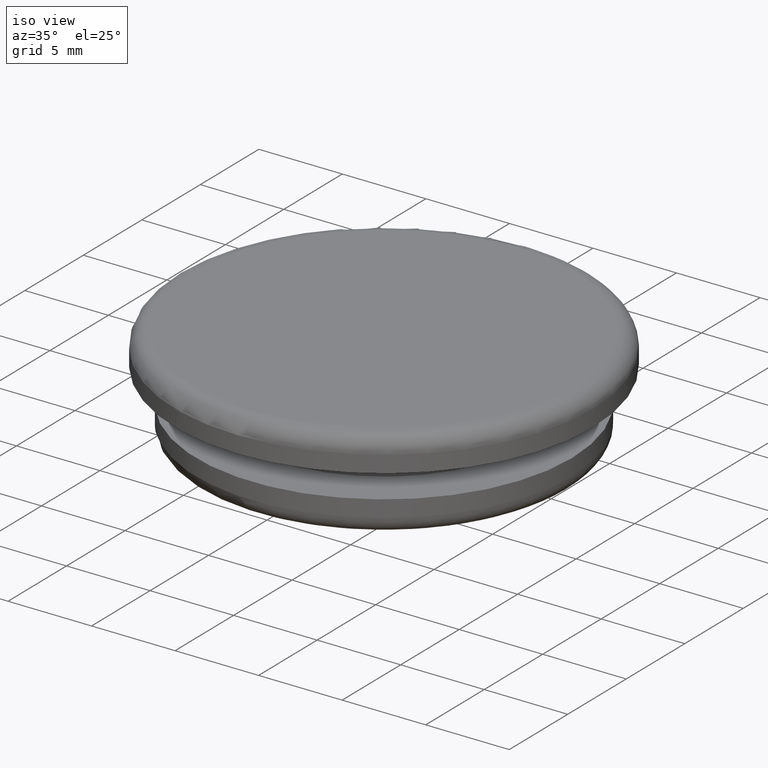
[diagram: clean part render]
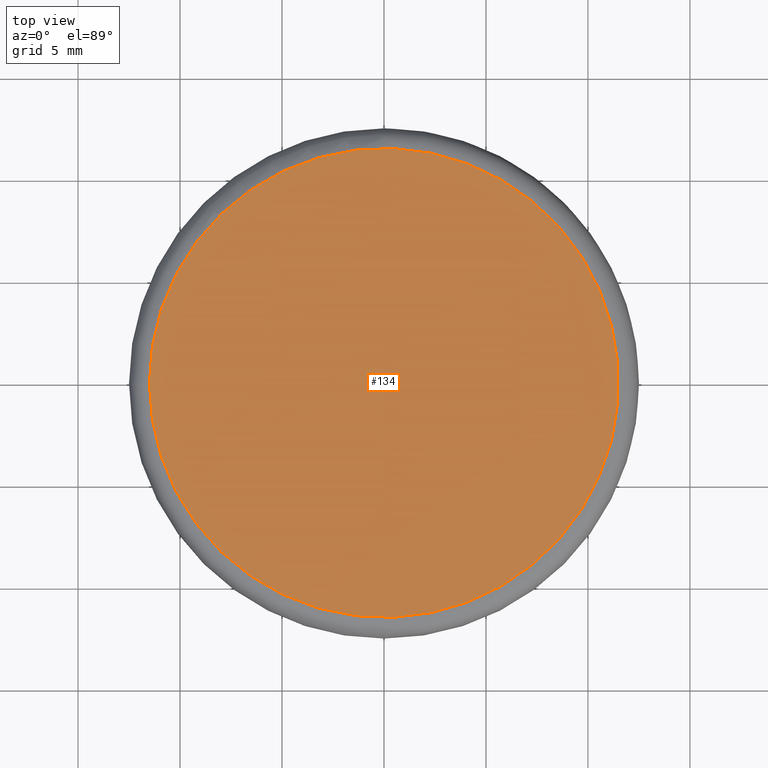
[diagram: tour spotlight — one face highlighted and labeled with its STEP entity id]
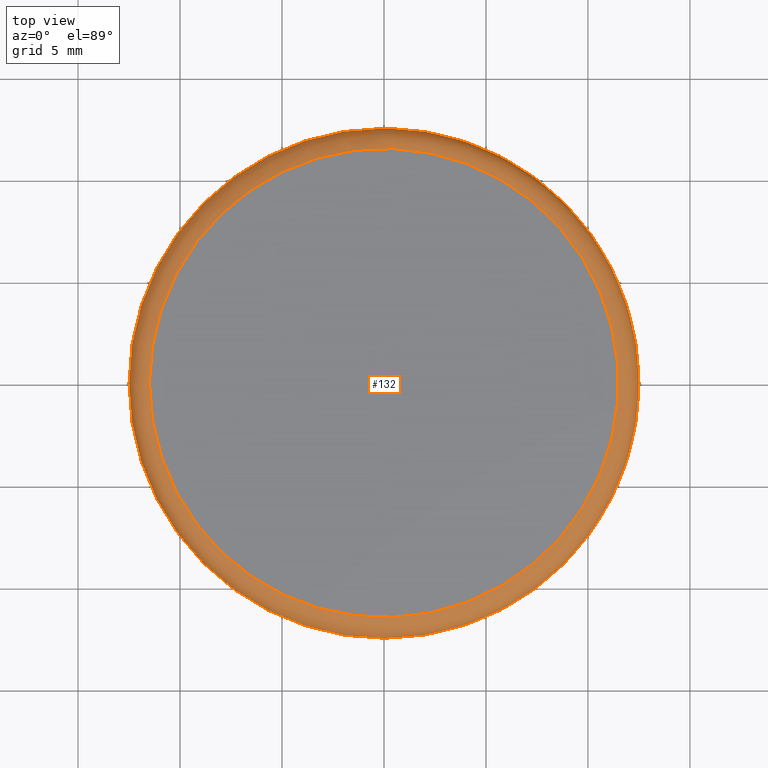
[diagram: tour spotlight — one face highlighted and labeled with its STEP entity id]
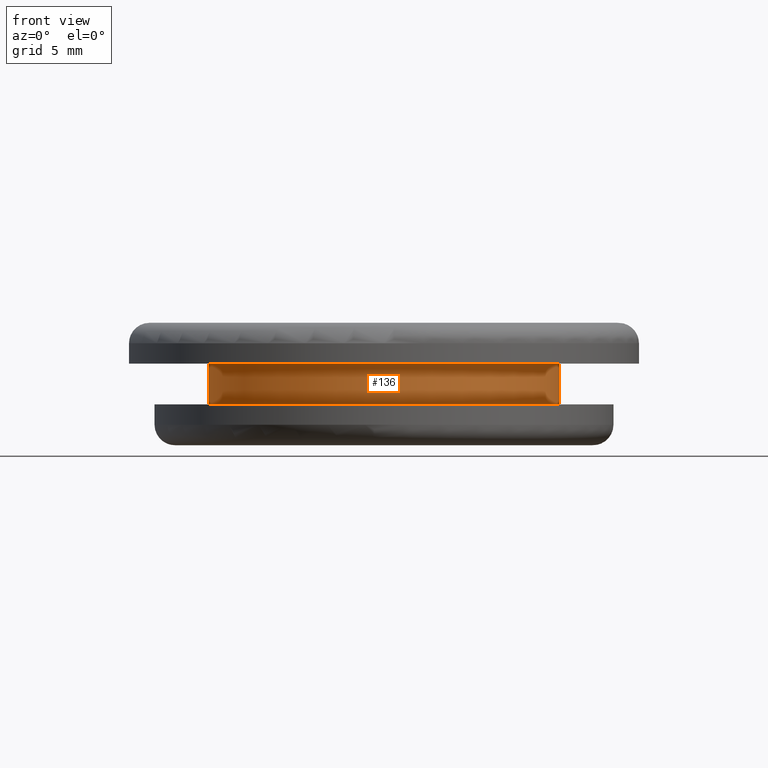
[diagram: tour spotlight — one face highlighted and labeled with its STEP entity id]
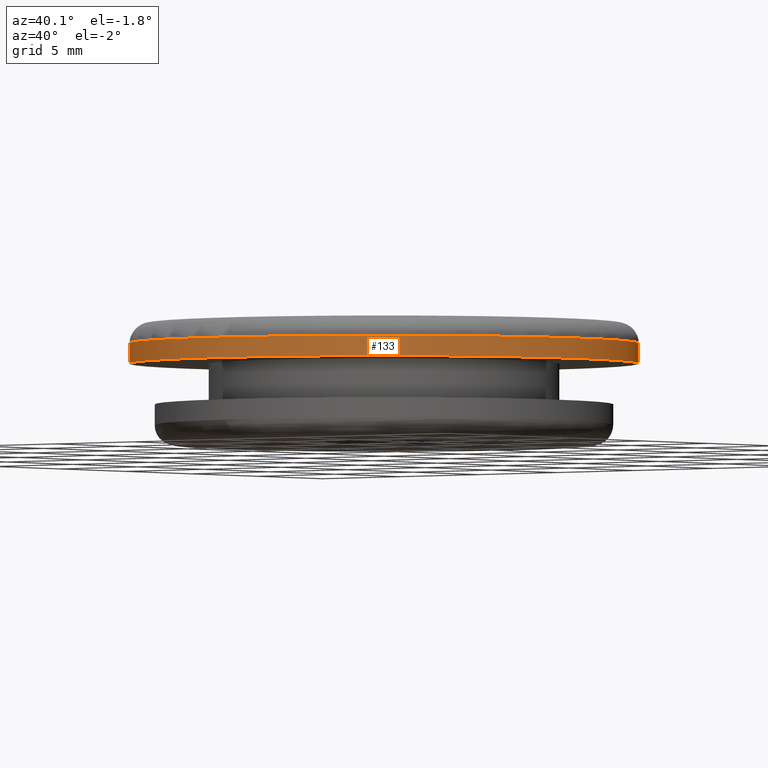
[diagram: tour spotlight — one face highlighted and labeled with its STEP entity id]
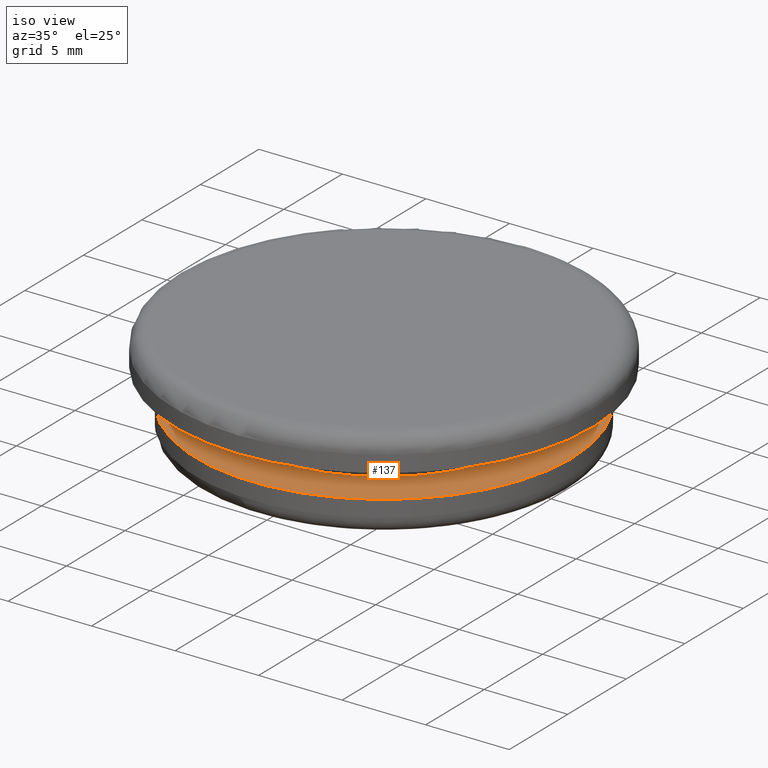
[diagram: tour spotlight — one face highlighted and labeled with its STEP entity id]
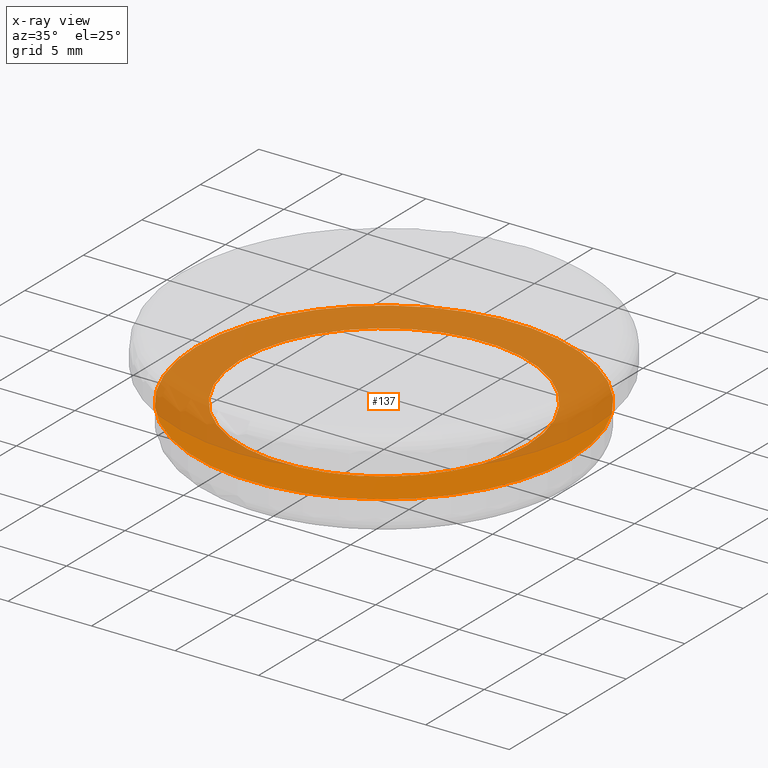
[diagram: x-ray of the same camera — body ghosted, this tour face saturated]
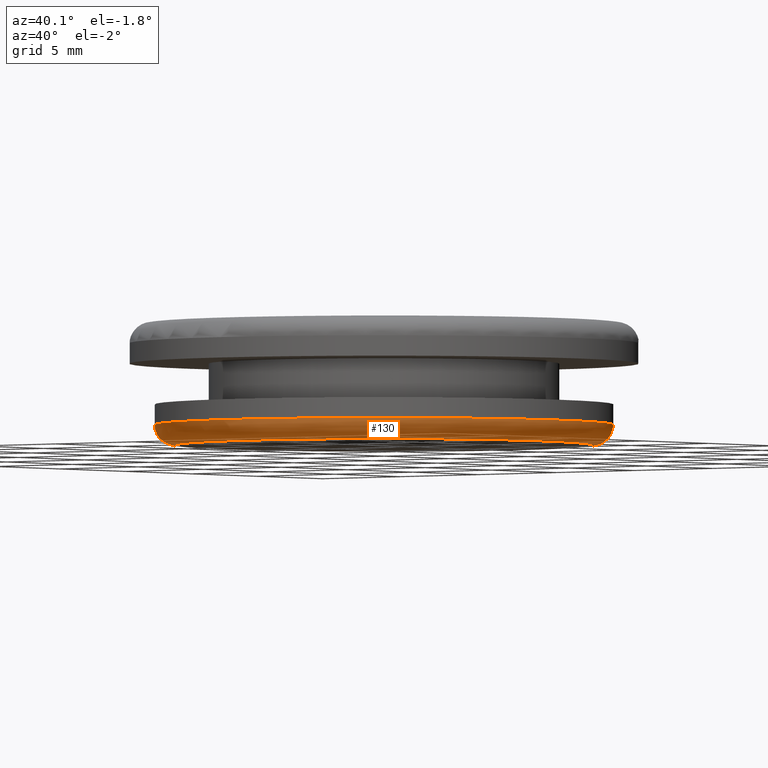
[diagram: tour spotlight — one face highlighted and labeled with its STEP entity id]
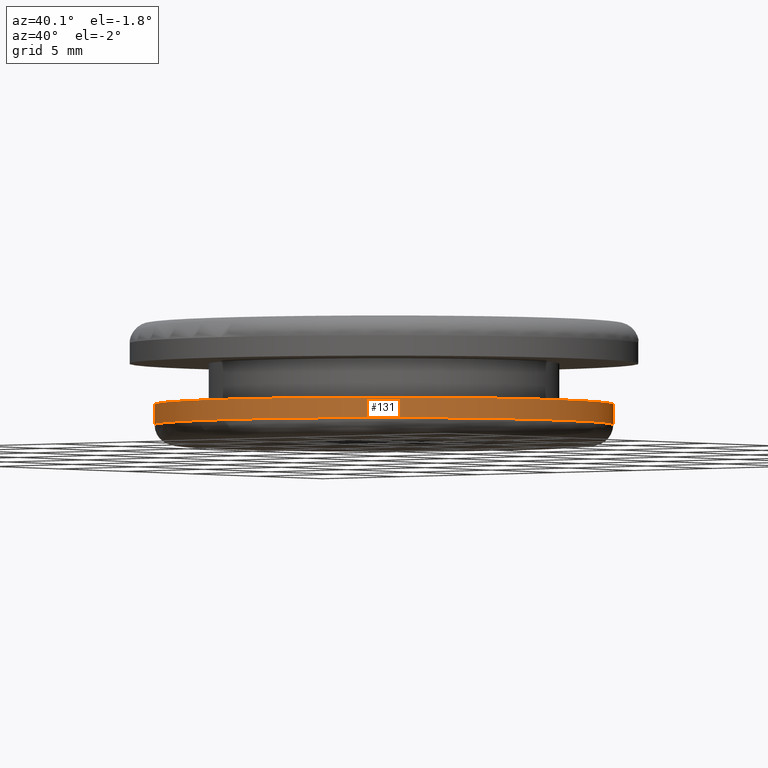
[diagram: tour spotlight — one face highlighted and labeled with its STEP entity id]
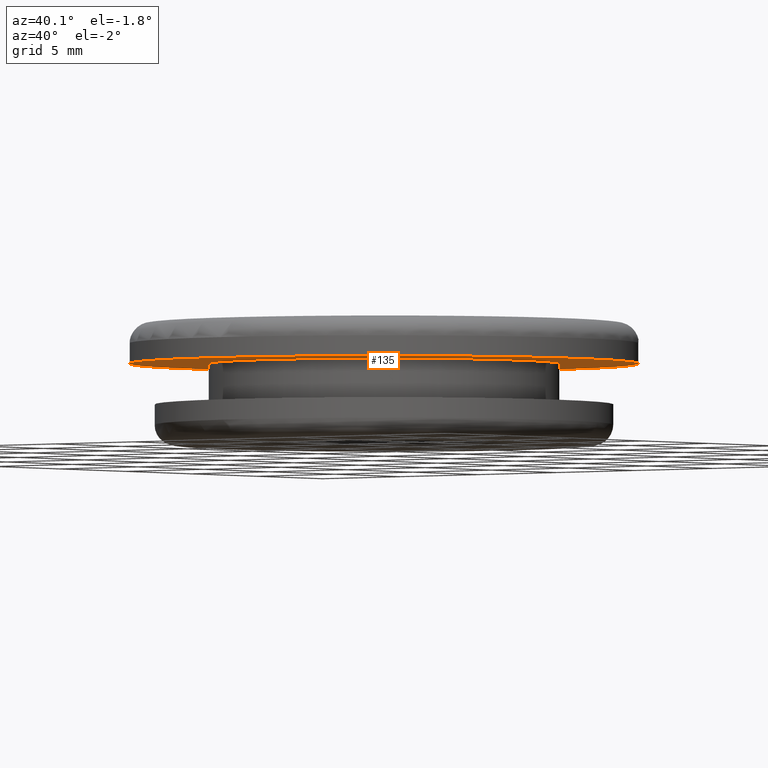
[diagram: tour spotlight — one face highlighted and labeled with its STEP entity id]
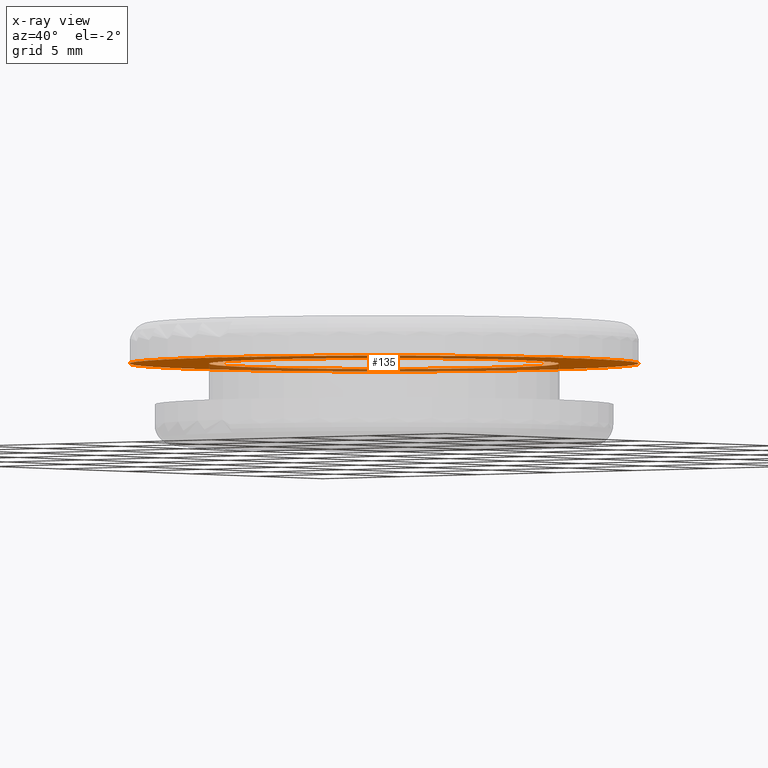
[diagram: x-ray of the same camera — body ghosted, this tour face saturated]
A machine part: a face-by-face anatomy tour. The part has 12 B-rep faces; the first image is the clean iso view, then the 8 largest visible faces are spotlighted one at a time (largest first), each with its STEP entity span.

Face 1 — top view, entity #134. In plain terms, the highlighted planar face has unit normal (0, 0, 1).
Definition (entity closure, byte-faithful):
#17=PLANE('',#157);
#42=FACE_OUTER_BOUND('',#61,.T.);
#61=EDGE_LOOP('',(#116));
#74=CIRCLE('',#153,11.5);
#85=VERTEX_POINT('',#231);
#96=EDGE_CURVE('',#85,#85,#74,.T.);
#116=ORIENTED_EDGE('',*,*,#96,.F.);
#134=ADVANCED_FACE('',(#42),#17,.T.);
#153=AXIS2_PLACEMENT_3D('',#232,#191,#192);
#157=AXIS2_PLACEMENT_3D('',#238,#199,#200);
#191=DIRECTION('center_axis',(-1.85037170770859E-16,0.,-1.));
#192=DIRECTION('ref_axis',(1.,0.,-1.85037170770859E-16));
#199=DIRECTION('center_axis',(1.85037170770859E-16,0.,1.));
#200=DIRECTION('ref_axis',(1.,0.,-1.85037170770859E-16));
#231=CARTESIAN_POINT('',(-11.5,1.40834381901946E-15,-2.31296463463575E-16));
#232=CARTESIAN_POINT('Origin',(-3.38963670212154E-31,0.,-2.35922392732846E-15));
#238=CARTESIAN_POINT('Origin',(-12.5,0.,0.));

Face 2 — top view, entity #132. In plain terms, the highlighted toroidal blend (fillet) surface has major radius 11.5 mm and minor (blend) radius 1 mm.
Definition (entity closure, byte-faithful):
#29=FACE_BOUND('',#58,.T.);
#40=FACE_OUTER_BOUND('',#57,.T.);
#57=EDGE_LOOP('',(#112));
#58=EDGE_LOOP('',(#113));
#74=CIRCLE('',#153,11.5);
#75=CIRCLE('',#154,12.5);
#85=VERTEX_POINT('',#231);
#86=VERTEX_POINT('',#233);
#96=EDGE_CURVE('',#85,#85,#74,.T.);
#97=EDGE_CURVE('',#86,#86,#75,.T.);
#112=ORIENTED_EDGE('',*,*,#96,.T.);
#113=ORIENTED_EDGE('',*,*,#97,.T.);
#125=TOROIDAL_SURFACE('',#152,11.5,1.);
#132=ADVANCED_FACE('',(#40,#29),#125,.T.);
#152=AXIS2_PLACEMENT_3D('',#230,#189,#190);
#153=AXIS2_PLACEMENT_3D('',#232,#191,#192);
#154=AXIS2_PLACEMENT_3D('',#234,#193,#194);
#189=DIRECTION('center_axis',(-1.85037170770859E-16,0.,-1.));
#190=DIRECTION('ref_axis',(-1.,0.,1.95399252334028E-16));
#191=DIRECTION('center_axis',(-1.85037170770859E-16,0.,-1.));
#192=DIRECTION('ref_axis',(1.,0.,-1.85037170770859E-16));
#193=DIRECTION('center_axis',(1.85037170770859E-16,0.,1.));
#194=DIRECTION('ref_axis',(1.,0.,-1.88737914186277E-16));
#230=CARTESIAN_POINT('Origin',(-1.8503717077086E-16,0.,-1.));
#231=CARTESIAN_POINT('',(-11.5,1.40834381901946E-15,-2.31296463463575E-16));
#232=CARTESIAN_POINT('Origin',(-3.38963670212154E-31,0.,-2.35922392732846E-15));
#233=CARTESIAN_POINT('',(-12.5,-1.53080849893419E-15,-1.));
#234=CARTESIAN_POINT('Origin',(-1.8503717077086E-16,0.,-1.));

Face 3 — front view, entity #136. In plain terms, the highlighted cylindrical surface (bore or boss wall) has radius 8.6 mm, axis along (-0, 0, -1).
Definition (entity closure, byte-faithful):
#23=CYLINDRICAL_SURFACE('',#160,8.6);
#32=FACE_BOUND('',#65,.T.);
#44=FACE_OUTER_BOUND('',#64,.T.);
#64=EDGE_LOOP('',(#119));
#65=EDGE_LOOP('',(#120));
#77=CIRCLE('',#159,8.6);
#78=CIRCLE('',#161,8.6);
#88=VERTEX_POINT('',#240);
#89=VERTEX_POINT('',#243);
#99=EDGE_CURVE('',#88,#88,#77,.T.);
#100=EDGE_CURVE('',#89,#89,#78,.T.);
#119=ORIENTED_EDGE('',*,*,#100,.F.);
#120=ORIENTED_EDGE('',*,*,#99,.T.);
#136=ADVANCED_FACE('',(#44,#32),#23,.T.);
#159=AXIS2_PLACEMENT_3D('',#241,#203,#204);
#160=AXIS2_PLACEMENT_3D('',#242,#205,#206);
#161=AXIS2_PLACEMENT_3D('',#244,#207,#208);
#203=DIRECTION('center_axis',(-1.85037170770859E-16,0.,-1.));
#204=DIRECTION('ref_axis',(1.,0.,-1.85037170770859E-16));
#205=DIRECTION('center_axis',(-1.85037170770859E-16,0.,-1.));
#206=DIRECTION('ref_axis',(-1.,0.,2.04487794139683E-16));
#207=DIRECTION('center_axis',(-1.85037170770859E-16,0.,-1.));
#208=DIRECTION('ref_axis',(1.,0.,-1.85037170770859E-16));
#240=CARTESIAN_POINT('',(-8.6,0.,-2.));
#241=CARTESIAN_POINT('Origin',(-3.70074341541719E-16,0.,-2.));
#242=CARTESIAN_POINT('Origin',(-5.55111512312578E-16,0.,-3.));
#243=CARTESIAN_POINT('',(-8.6,0.,-4.));
#244=CARTESIAN_POINT('Origin',(-7.40148683083438E-16,0.,-4.));

Face 4 — auxiliary view, entity #133. In plain terms, the highlighted cylindrical surface (bore or boss wall) has radius 12.5 mm, axis along (-0, 0, -1).
Definition (entity closure, byte-faithful):
#22=CYLINDRICAL_SURFACE('',#155,12.5);
#30=FACE_BOUND('',#60,.T.);
#41=FACE_OUTER_BOUND('',#59,.T.);
#59=EDGE_LOOP('',(#114));
#60=EDGE_LOOP('',(#115));
#75=CIRCLE('',#154,12.5);
#76=CIRCLE('',#156,12.5);
#86=VERTEX_POINT('',#233);
#87=VERTEX_POINT('',#236);
#97=EDGE_CURVE('',#86,#86,#75,.T.);
#98=EDGE_CURVE('',#87,#87,#76,.T.);
#114=ORIENTED_EDGE('',*,*,#98,.F.);
#115=ORIENTED_EDGE('',*,*,#97,.F.);
#133=ADVANCED_FACE('',(#41,#30),#22,.T.);
#154=AXIS2_PLACEMENT_3D('',#234,#193,#194);
#155=AXIS2_PLACEMENT_3D('',#235,#195,#196);
#156=AXIS2_PLACEMENT_3D('',#237,#197,#198);
#193=DIRECTION('center_axis',(1.85037170770859E-16,0.,1.));
#194=DIRECTION('ref_axis',(1.,0.,-1.88737914186277E-16));
#195=DIRECTION('center_axis',(-1.85037170770859E-16,0.,-1.));
#196=DIRECTION('ref_axis',(-1.,0.,2.04487794139683E-16));
#197=DIRECTION('center_axis',(-1.85037170770859E-16,0.,-1.));
#198=DIRECTION('ref_axis',(1.,0.,-1.85037170770859E-16));
#233=CARTESIAN_POINT('',(-12.5,-1.53080849893419E-15,-1.));
#234=CARTESIAN_POINT('Origin',(-1.8503717077086E-16,0.,-1.));
#235=CARTESIAN_POINT('Origin',(-1.8503717077086E-16,0.,-1.));
#236=CARTESIAN_POINT('',(-12.5,0.,-2.));
#237=CARTESIAN_POINT('Origin',(-3.70074341541719E-16,0.,-2.));

Face 5 — iso view, entity #137. An x-ray twin of the same camera follows (body ghosted, this face saturated) — the face is partly hidden behind the body. In plain terms, the highlighted planar face has unit normal (0, 0, 1).
Definition (entity closure, byte-faithful):
#19=PLANE('',#162);
#33=FACE_BOUND('',#67,.T.);
#45=FACE_OUTER_BOUND('',#66,.T.);
#66=EDGE_LOOP('',(#121));
#67=EDGE_LOOP('',(#122));
#73=CIRCLE('',#151,11.25);
#78=CIRCLE('',#161,8.6);
#84=VERTEX_POINT('',#228);
#89=VERTEX_POINT('',#243);
#95=EDGE_CURVE('',#84,#84,#73,.T.);
#100=EDGE_CURVE('',#89,#89,#78,.T.);
#121=ORIENTED_EDGE('',*,*,#95,.F.);
#122=ORIENTED_EDGE('',*,*,#100,.T.);
#137=ADVANCED_FACE('',(#45,#33),#19,.T.);
#151=AXIS2_PLACEMENT_3D('',#229,#187,#188);
#161=AXIS2_PLACEMENT_3D('',#244,#207,#208);
#162=AXIS2_PLACEMENT_3D('',#245,#209,#210);
#187=DIRECTION('center_axis',(-1.85037170770859E-16,0.,-1.));
#188=DIRECTION('ref_axis',(1.,0.,-1.85037170770859E-16));
#207=DIRECTION('center_axis',(-1.85037170770859E-16,0.,-1.));
#208=DIRECTION('ref_axis',(1.,0.,-1.85037170770859E-16));
#209=DIRECTION('center_axis',(1.85037170770859E-16,0.,1.));
#210=DIRECTION('ref_axis',(1.,0.,-2.22044604925031E-16));
#228=CARTESIAN_POINT('',(-11.25,0.,-4.));
#229=CARTESIAN_POINT('Origin',(-7.40148683083437E-16,0.,-4.));
#243=CARTESIAN_POINT('',(-8.6,0.,-4.));
#244=CARTESIAN_POINT('Origin',(-7.40148683083438E-16,0.,-4.));
#245=CARTESIAN_POINT('Origin',(-11.25,0.,-4.));

Face 6 — auxiliary view, entity #130. In plain terms, the highlighted toroidal blend (fillet) surface has major radius 10.25 mm and minor (blend) radius 1 mm.
Definition (entity closure, byte-faithful):
#27=FACE_BOUND('',#54,.T.);
#38=FACE_OUTER_BOUND('',#53,.T.);
#53=EDGE_LOOP('',(#108));
#54=EDGE_LOOP('',(#109));
#71=CIRCLE('',#146,10.25);
#72=CIRCLE('',#149,11.25);
#82=VERTEX_POINT('',#221);
#83=VERTEX_POINT('',#225);
#93=EDGE_CURVE('',#82,#82,#71,.T.);
#94=EDGE_CURVE('',#83,#83,#72,.T.);
#108=ORIENTED_EDGE('',*,*,#94,.T.);
#109=ORIENTED_EDGE('',*,*,#93,.T.);
#124=TOROIDAL_SURFACE('',#148,10.25,1.);
#130=ADVANCED_FACE('',(#38,#27),#124,.T.);
#146=AXIS2_PLACEMENT_3D('',#222,#177,#178);
#148=AXIS2_PLACEMENT_3D('',#224,#181,#182);
#149=AXIS2_PLACEMENT_3D('',#226,#183,#184);
#177=DIRECTION('center_axis',(1.85037170770859E-16,0.,1.));
#178=DIRECTION('ref_axis',(1.,0.,-1.85037170770859E-16));
#181=DIRECTION('center_axis',(-1.85037170770859E-16,0.,-1.));
#182=DIRECTION('ref_axis',(-1.,0.,1.57898385724467E-16));
#183=DIRECTION('center_axis',(-1.85037170770859E-16,0.,-1.));
#184=DIRECTION('ref_axis',(1.,0.,-1.85037170770859E-16));
#221=CARTESIAN_POINT('',(-10.25,-1.25526296912604E-15,-6.));
#222=CARTESIAN_POINT('Origin',(-1.11022302462516E-15,0.,-6.));
#224=CARTESIAN_POINT('Origin',(-9.25185853854297E-16,0.,-5.));
#225=CARTESIAN_POINT('',(-11.25,1.37772764904077E-15,-5.));
#226=CARTESIAN_POINT('Origin',(-9.25185853854297E-16,0.,-5.));

Face 7 — auxiliary view, entity #131. In plain terms, the highlighted cylindrical surface (bore or boss wall) has radius 11.25 mm, axis along (-0, 0, -1).
Definition (entity closure, byte-faithful):
#21=CYLINDRICAL_SURFACE('',#150,11.25);
#28=FACE_BOUND('',#56,.T.);
#39=FACE_OUTER_BOUND('',#55,.T.);
#55=EDGE_LOOP('',(#110));
#56=EDGE_LOOP('',(#111));
#72=CIRCLE('',#149,11.25);
#73=CIRCLE('',#151,11.25);
#83=VERTEX_POINT('',#225);
#84=VERTEX_POINT('',#228);
#94=EDGE_CURVE('',#83,#83,#72,.T.);
#95=EDGE_CURVE('',#84,#84,#73,.T.);
#110=ORIENTED_EDGE('',*,*,#95,.T.);
#111=ORIENTED_EDGE('',*,*,#94,.F.);
#131=ADVANCED_FACE('',(#39,#28),#21,.T.);
#149=AXIS2_PLACEMENT_3D('',#226,#183,#184);
#150=AXIS2_PLACEMENT_3D('',#227,#185,#186);
#151=AXIS2_PLACEMENT_3D('',#229,#187,#188);
#183=DIRECTION('center_axis',(-1.85037170770859E-16,0.,-1.));
#184=DIRECTION('ref_axis',(1.,0.,-1.85037170770859E-16));
#185=DIRECTION('center_axis',(-1.85037170770859E-16,0.,-1.));
#186=DIRECTION('ref_axis',(-1.,0.,2.04487794139683E-16));
#187=DIRECTION('center_axis',(-1.85037170770859E-16,0.,-1.));
#188=DIRECTION('ref_axis',(1.,0.,-1.85037170770859E-16));
#225=CARTESIAN_POINT('',(-11.25,1.37772764904077E-15,-5.));
#226=CARTESIAN_POINT('Origin',(-9.25185853854297E-16,0.,-5.));
#227=CARTESIAN_POINT('Origin',(-9.25185853854297E-16,0.,-5.));
#228=CARTESIAN_POINT('',(-11.25,0.,-4.));
#229=CARTESIAN_POINT('Origin',(-7.40148683083437E-16,0.,-4.));

Face 8 — auxiliary view, entity #135. An x-ray twin of the same camera follows (body ghosted, this face saturated) — the face is partly hidden behind the body. In plain terms, the highlighted planar face has unit normal (-0, 0, -1).
Definition (entity closure, byte-faithful):
#18=PLANE('',#158);
#31=FACE_BOUND('',#63,.T.);
#43=FACE_OUTER_BOUND('',#62,.T.);
#62=EDGE_LOOP('',(#117));
#63=EDGE_LOOP('',(#118));
#76=CIRCLE('',#156,12.5);
#77=CIRCLE('',#159,8.6);
#87=VERTEX_POINT('',#236);
#88=VERTEX_POINT('',#240);
#98=EDGE_CURVE('',#87,#87,#76,.T.);
#99=EDGE_CURVE('',#88,#88,#77,.T.);
#117=ORIENTED_EDGE('',*,*,#98,.T.);
#118=ORIENTED_EDGE('',*,*,#99,.F.);
#135=ADVANCED_FACE('',(#43,#31),#18,.T.);
#156=AXIS2_PLACEMENT_3D('',#237,#197,#198);
#158=AXIS2_PLACEMENT_3D('',#239,#201,#202);
#159=AXIS2_PLACEMENT_3D('',#241,#203,#204);
#197=DIRECTION('center_axis',(-1.85037170770859E-16,0.,-1.));
#198=DIRECTION('ref_axis',(1.,0.,-1.85037170770859E-16));
#201=DIRECTION('center_axis',(-1.85037170770859E-16,0.,-1.));
#202=DIRECTION('ref_axis',(-1.,0.,1.77635683940025E-16));
#203=DIRECTION('center_axis',(-1.85037170770859E-16,0.,-1.));
#204=DIRECTION('ref_axis',(1.,0.,-1.85037170770859E-16));
#236=CARTESIAN_POINT('',(-12.5,0.,-2.));
#237=CARTESIAN_POINT('Origin',(-3.70074341541719E-16,0.,-2.));
#239=CARTESIAN_POINT('Origin',(-8.6,0.,-2.));
#240=CARTESIAN_POINT('',(-8.6,0.,-2.));
#241=CARTESIAN_POINT('Origin',(-3.70074341541719E-16,0.,-2.));